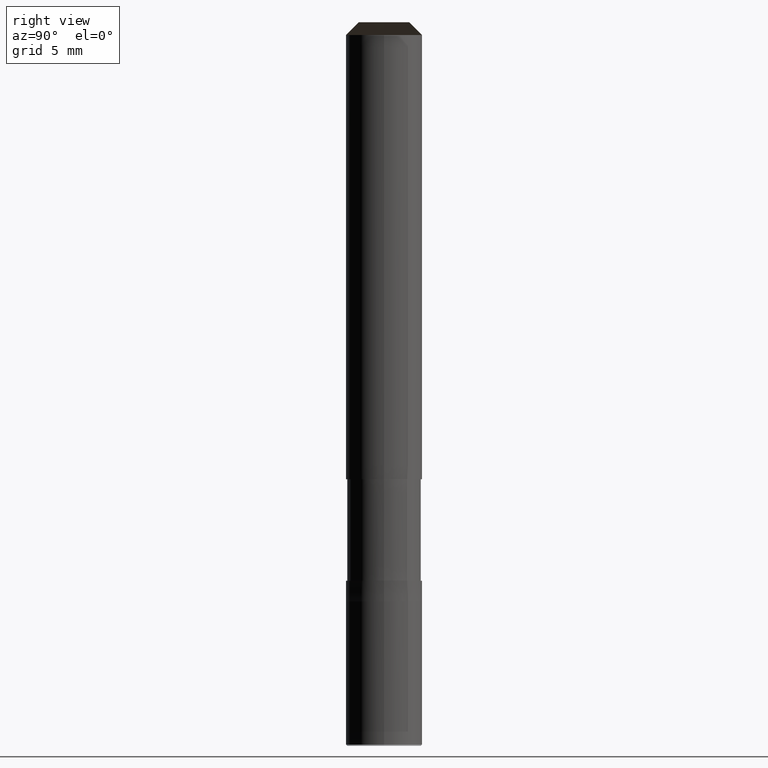
[diagram: clean part render]
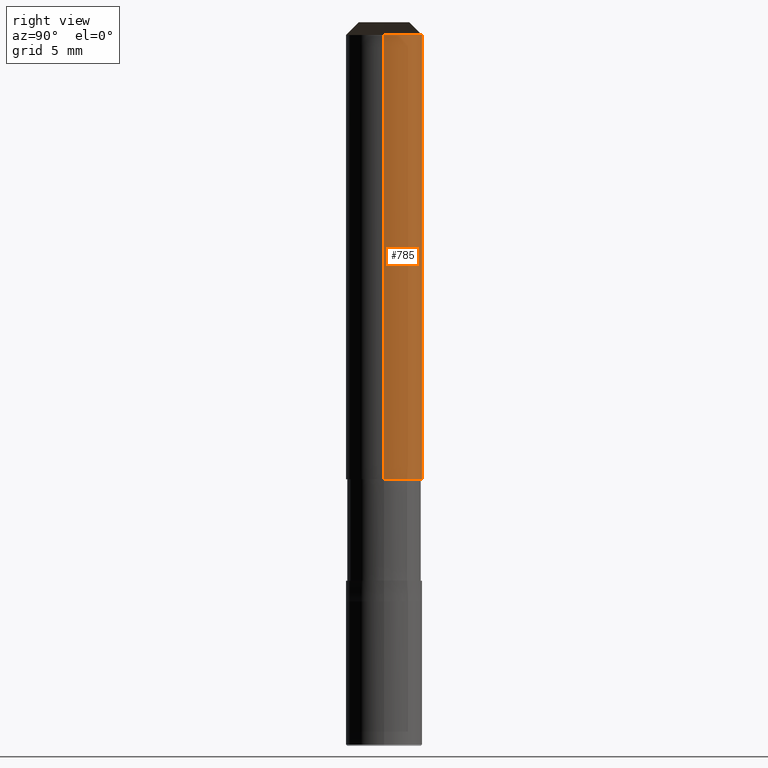
[diagram: same view with one face highlighted and labeled with its STEP entity id]
A machine part, right view. The second image highlights one B-rep face of the part: STEP entity #785.
In plain terms, the highlighted face is a freeform B-spline surface patch.
Its self-contained STEP definition (entity closure, byte-faithful):
#483=CARTESIAN_POINT('',(3.0,0.0,0.0));
#484=CARTESIAN_POINT('',(3.0,3.0,0.0));
#485=CARTESIAN_POINT('',(0.0,3.0,0.0));
#486=CARTESIAN_POINT('',(-3.0,3.0,0.0));
#487=CARTESIAN_POINT('',(-3.0,0.0,0.0));
#488=CARTESIAN_POINT('',(3.0,0.0,35.0));
#489=CARTESIAN_POINT('',(3.0,3.0,35.0));
#490=CARTESIAN_POINT('',(0.0,3.0,35.0));
#491=CARTESIAN_POINT('',(-3.0,3.0,35.0));
#492=CARTESIAN_POINT('',(-3.0,0.0,35.0));
#766=(
BOUNDED_SURFACE()
B_SPLINE_SURFACE(1,2,(
(#483,#484,#485,#486,#487),
(#488,#489,#490,#491,#492)
), .UNSPECIFIED.,.F.,.F.,.F.)
B_SPLINE_SURFACE_WITH_KNOTS((2,2),(3,2,3),(
0.0,1.0),(
0.0,0.5,1.0), .UNSPECIFIED.)
GEOMETRIC_REPRESENTATION_ITEM()
RATIONAL_B_SPLINE_SURFACE(((1.0,0.707106781187,1.0,0.707106781187,1.0),
(1.0,0.707106781187,1.0,0.707106781187,1.0)
))
REPRESENTATION_ITEM('')
SURFACE()
);
#767=(
BOUNDED_CURVE()
B_SPLINE_CURVE(2,(#487,#486,#485,#484,#483),.UNSPECIFIED.,.F.,.F.)
B_SPLINE_CURVE_WITH_KNOTS((3,2,3),
(0.0,0.5,1.0),.UNSPECIFIED.)
CURVE()
GEOMETRIC_REPRESENTATION_ITEM()
RATIONAL_B_SPLINE_CURVE((1.0,0.707106781187,1.0,0.707106781187,1.0))
REPRESENTATION_ITEM('')
);
#768=(
BOUNDED_CURVE()
B_SPLINE_CURVE(1,(#483,#488),.UNSPECIFIED.,.F.,.F.)
B_SPLINE_CURVE_WITH_KNOTS((2,2),
(0.0,1.0),.UNSPECIFIED.)
CURVE()
GEOMETRIC_REPRESENTATION_ITEM()
RATIONAL_B_SPLINE_CURVE((1.0,1.0))
REPRESENTATION_ITEM('')
);
#769=(
BOUNDED_CURVE()
B_SPLINE_CURVE(2,(#488,#489,#490,#491,#492),.UNSPECIFIED.,.F.,.F.)
B_SPLINE_CURVE_WITH_KNOTS((3,2,3),
(0.0,0.5,1.0),.UNSPECIFIED.)
CURVE()
GEOMETRIC_REPRESENTATION_ITEM()
RATIONAL_B_SPLINE_CURVE((1.0,0.707106781187,1.0,0.707106781187,1.0))
REPRESENTATION_ITEM('')
);
#770=(
BOUNDED_CURVE()
B_SPLINE_CURVE(1,(#492,#487),.UNSPECIFIED.,.F.,.F.)
B_SPLINE_CURVE_WITH_KNOTS((2,2),
(0.0,1.0),.UNSPECIFIED.)
CURVE()
GEOMETRIC_REPRESENTATION_ITEM()
RATIONAL_B_SPLINE_CURVE((1.0,1.0))
REPRESENTATION_ITEM('')
);
#771=VERTEX_POINT('',#483);
#772=VERTEX_POINT('',#487);
#773=VERTEX_POINT('',#488);
#774=VERTEX_POINT('',#492);
#775=EDGE_CURVE('',#772,#771,#767,.T.);
#776=EDGE_CURVE('',#771,#773,#768,.T.);
#777=EDGE_CURVE('',#773,#774,#769,.T.);
#778=EDGE_CURVE('',#774,#772,#770,.T.);
#779=ORIENTED_EDGE('',*,*,#775,.T.);
#780=ORIENTED_EDGE('',*,*,#776,.T.);
#781=ORIENTED_EDGE('',*,*,#777,.T.);
#782=ORIENTED_EDGE('',*,*,#778,.T.);
#783=EDGE_LOOP('',(#779,#780,#781,#782));
#784=FACE_OUTER_BOUND('',#783,.T.);
#785=ADVANCED_FACE('',(#784),#766,.T.);